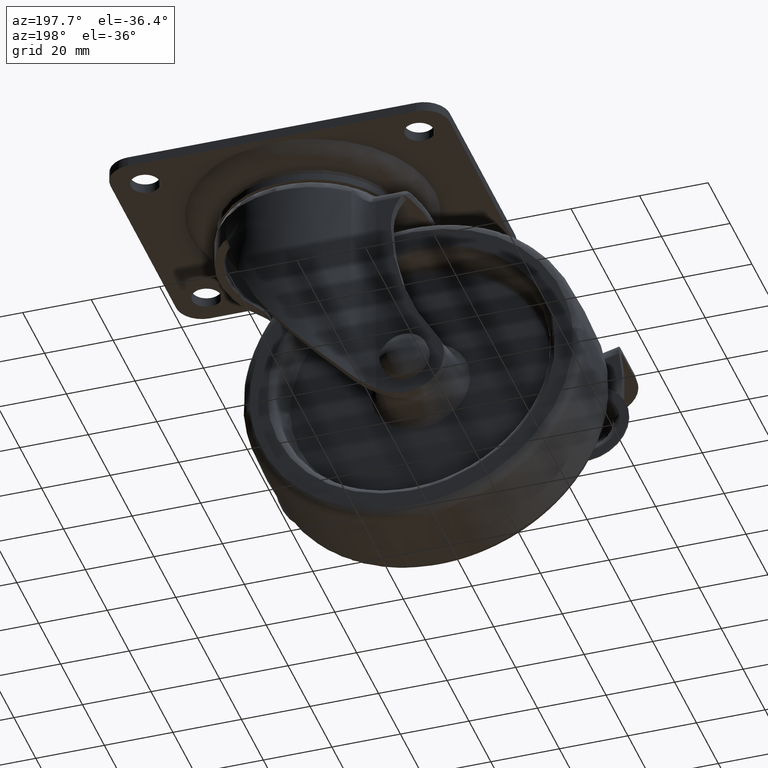
[diagram: clean part render]
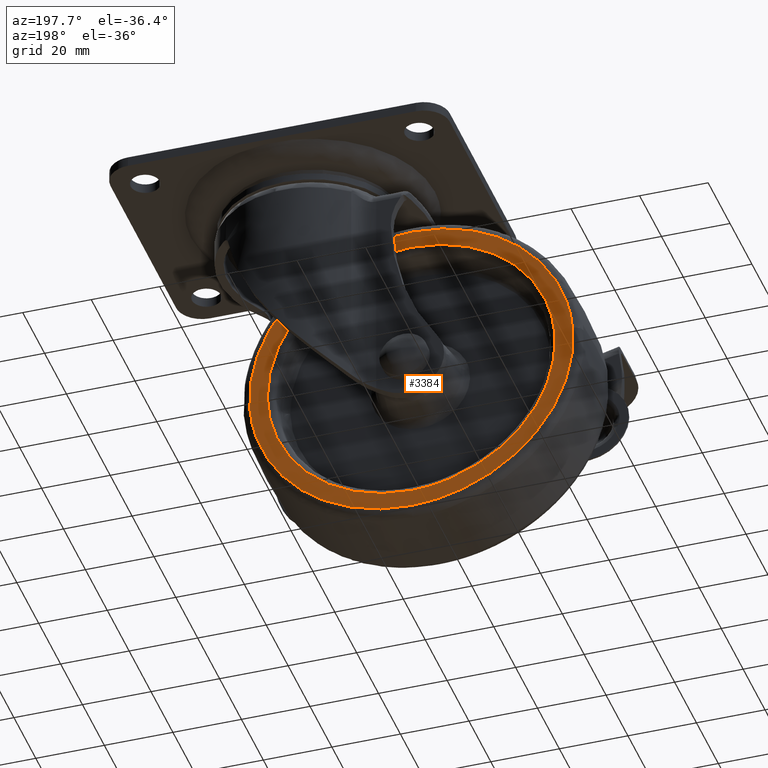
[diagram: same view with one face highlighted and labeled with its STEP entity id]
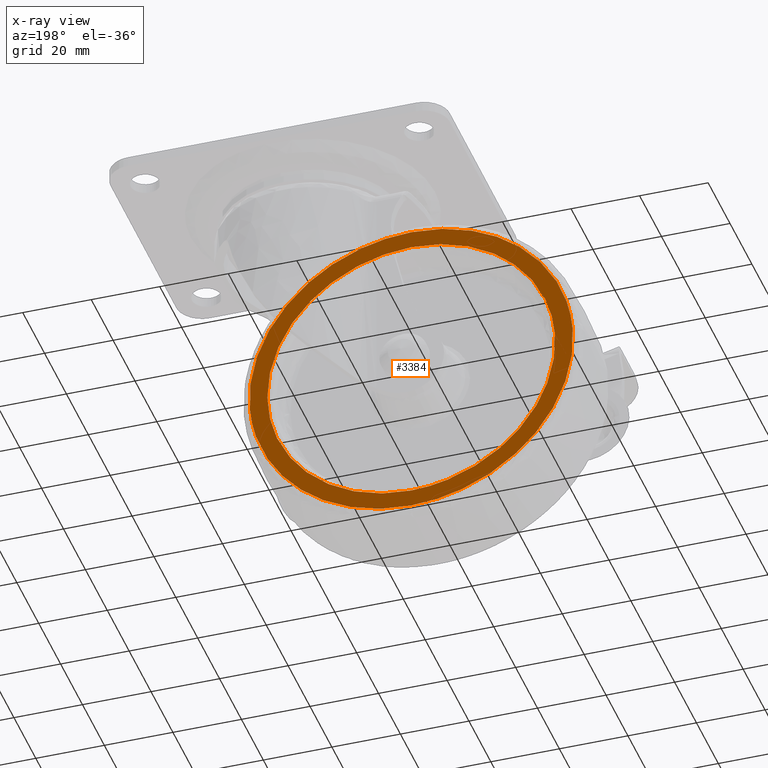
[diagram: x-ray of the same camera — body ghosted, the highlighted face saturated]
A machine part, auxiliary view. The second image highlights one B-rep face of the part: STEP entity #3384.
The next image is the same camera in x-ray: the body ghosted, the highlighted face saturated — about 0% of this face is hidden behind the body in this view.
In plain terms, the highlighted face is a freeform B-spline surface patch.
Its self-contained STEP definition (entity closure, byte-faithful):
#2135=CARTESIAN_POINT('',(14.059764728423991,13.500000000000000,-76.554724548812743));
#2136=VERTEX_POINT('',#2135);
#2148=CARTESIAN_POINT('',(-32.999587000000091,13.500000000000000,-25.806361046465810));
#2149=VERTEX_POINT('',#2148);
#2150=CARTESIAN_POINT('',(14.059764728423991,13.500000000000000,-76.554724548812743));
#2151=CARTESIAN_POINT('',(14.258121542513511,13.499999999999980,-73.932081458223720));
#2152=CARTESIAN_POINT('',(14.221909144406929,13.500000000000020,-69.567250422500194));
#2153=CARTESIAN_POINT('',(13.275797707015339,13.499999999999989,-63.152828957922189));
#2154=CARTESIAN_POINT('',(11.741919434512450,13.500000000000011,-57.580922317843438));
#2155=CARTESIAN_POINT('',(9.310999816512210,13.499999999999950,-51.786614084894261));
#2156=CARTESIAN_POINT('',(6.291004045112199,13.500000000000229,-46.621413843949490));
#2157=CARTESIAN_POINT('',(1.769754157088181,13.499999999999091,-40.767026899274619));
#2158=CARTESIAN_POINT('',(-3.668140199466652,13.500000000001590,-35.709774661118708));
#2159=CARTESIAN_POINT('',(-10.318090983843740,13.499999999997730,-31.426188444865652));
#2160=CARTESIAN_POINT('',(-16.225389022224281,13.500000000001091,-28.733940605530531));
#2161=CARTESIAN_POINT('',(-23.794520991870929,13.499999999999121,-26.453712515399879));
#2162=CARTESIAN_POINT('',(-29.357817931885180,13.500000000000460,-25.805563813266339));
#2163=CARTESIAN_POINT('',(-32.999587000000091,13.500000000000000,-25.806361046465810));
#2164=B_SPLINE_CURVE_WITH_KNOTS('',3,(#2150,#2151,#2152,#2153,#2154,#2155,#2156,#2157,#2158,#2159,#2160,#2161,#2162,#2163),.UNSPECIFIED.,.F.,.U.,(4,1,1,1,1,1,1,1,1,1,1,4),(0.000000207233910,7.890358007227022,13.049400240823861,19.422427866332590,25.188469667231988,31.865003169705759,37.327544819039467,47.342089144840280,54.018620361975330,60.998560187026442,66.764648738647338,77.689706007485441),.UNSPECIFIED.);
#2165=EDGE_CURVE('',#2136,#2149,#2164,.T.);
#2167=CARTESIAN_POINT('',(-80.058938728424181,13.500000000000000,-69.444863451187274));
#2168=VERTEX_POINT('',#2167);
#2169=CARTESIAN_POINT('',(-32.999587000000091,13.500000000000000,-25.806361046465810));
#2170=CARTESIAN_POINT('',(-35.021183344711240,13.500000000000011,-25.806321119140300));
#2171=CARTESIAN_POINT('',(-39.523872579903198,13.499999999999980,-26.096056054042950));
#2172=CARTESIAN_POINT('',(-46.920649950251089,13.499999999999959,-27.651881350356280));
#2173=CARTESIAN_POINT('',(-54.457332306325469,13.500000000000160,-30.685115220739629));
#2174=CARTESIAN_POINT('',(-60.469302220284668,13.499999999999780,-34.461042198009856));
#2175=CARTESIAN_POINT('',(-65.651621195414407,13.500000000000330,-38.731986973168837));
#2176=CARTESIAN_POINT('',(-69.800823952268374,13.499999999999920,-43.185108065202741));
#2177=CARTESIAN_POINT('',(-73.774893902424253,13.499999999999950,-48.943954903854092));
#2178=CARTESIAN_POINT('',(-76.553470017278826,13.500000000000030,-54.457987210071202));
#2179=CARTESIAN_POINT('',(-78.956499431459704,13.500000000000000,-61.418803137839461));
#2180=CARTESIAN_POINT('',(-79.824074158647278,13.500000000000000,-66.329347748408679));
#2181=CARTESIAN_POINT('',(-80.058938728424181,13.500000000000000,-69.444863451187274));
#2182=B_SPLINE_CURVE_WITH_KNOTS('',3,(#2169,#2170,#2171,#2172,#2173,#2174,#2175,#2176,#2177,#2178,#2179,#2180,#2181),.UNSPECIFIED.,.F.,.U.,(4,1,1,1,1,1,1,1,1,1,4),(0.000000163030933,6.064807567734704,13.508102662105470,22.605456015551379,30.324442449959239,34.735241671750288,42.729725600572330,48.518975105236187,55.686582308241363,61.200130198143519,70.573070464441187),.UNSPECIFIED.);
#2183=EDGE_CURVE('',#2149,#2168,#2182,.T.);
#2280=CARTESIAN_POINT('',(-32.999587000000091,13.500000000000000,-120.193226953534190));
#2281=VERTEX_POINT('',#2280);
#2282=CARTESIAN_POINT('',(-80.058938728424181,13.500000000000000,-69.444863451187274));
#2283=CARTESIAN_POINT('',(-80.219017908802101,13.500000000000011,-71.563140408816921));
#2284=CARTESIAN_POINT('',(-80.254134058551216,13.499999999999980,-76.024128311835241));
#2285=CARTESIAN_POINT('',(-79.416478070814719,13.500000000000030,-82.257063469305166));
#2286=CARTESIAN_POINT('',(-77.768513320749804,13.499999999999959,-88.319419137579246));
#2287=CARTESIAN_POINT('',(-75.567016217989519,13.500000000000069,-93.662857836871709));
#2288=CARTESIAN_POINT('',(-72.416190580783734,13.499999999999980,-99.214770825811627));
#2289=CARTESIAN_POINT('',(-68.664558626753660,13.499999999999940,-104.137083850723100));
#2290=CARTESIAN_POINT('',(-63.483750593159733,13.499999999999700,-109.275762572015910));
#2291=CARTESIAN_POINT('',(-57.642304932926173,13.500000000000680,-113.507962815282800));
#2292=CARTESIAN_POINT('',(-51.279009928196622,13.499999999999670,-116.658491769073810));
#2293=CARTESIAN_POINT('',(-45.139649051805023,13.500000000000300,-118.747407009909300));
#2294=CARTESIAN_POINT('',(-39.170236015402239,13.499999999999890,-119.933402803130600));
#2295=CARTESIAN_POINT('',(-34.921584542307819,13.499999999999860,-120.193266578516200));
#2296=CARTESIAN_POINT('',(-32.999587000000091,13.500000000000000,-120.193226953534190));
#2297=B_SPLINE_CURVE_WITH_KNOTS('',3,(#2282,#2283,#2284,#2285,#2286,#2287,#2288,#2289,#2290,#2291,#2292,#2293,#2294,#2295,#2296),.UNSPECIFIED.,.F.,.U.,(4,1,1,1,1,1,1,1,1,1,1,1,4),(0.000000207087837,6.372960702281091,13.352909375283829,18.815475612682189,25.188469667127681,30.651029204137920,37.934466527604613,43.700436994443002,52.501234652769099,59.481183202258762,64.943754487427000,71.923699199706903,77.689706007485981),.UNSPECIFIED.);
#2298=EDGE_CURVE('',#2168,#2281,#2297,.T.);
#2300=CARTESIAN_POINT('',(-32.999587000000091,13.500000000000000,-120.193226953534190));
#2301=CARTESIAN_POINT('',(-29.323836833929398,13.499999999999931,-120.194061451370000));
#2302=CARTESIAN_POINT('',(-23.535049246611671,13.500000000000091,-119.513321658422300));
#2303=CARTESIAN_POINT('',(-16.673971736561189,13.499999999999940,-117.384344025403490));
#2304=CARTESIAN_POINT('',(-11.026436885196430,13.500000000000130,-114.917715570499600));
#2305=CARTESIAN_POINT('',(-5.727840842321290,13.499999999999670,-111.739237298858100));
#2306=CARTESIAN_POINT('',(-0.764885524445902,13.500000000000361,-107.624381564159900));
#2307=CARTESIAN_POINT('',(3.984175435277482,13.499999999999760,-102.616728268237300));
#2308=CARTESIAN_POINT('',(8.250606008628893,13.500000000000060,-96.472794506348450));
#2309=CARTESIAN_POINT('',(11.581555647085549,13.500000000000011,-89.072226021629163));
#2310=CARTESIAN_POINT('',(13.368744461801230,13.500000000000000,-82.492477622988815));
#2311=CARTESIAN_POINT('',(13.921358584550401,13.500000000000000,-78.387315415503508));
#2312=CARTESIAN_POINT('',(14.059764728423991,13.500000000000000,-76.554724548812743));
#2313=B_SPLINE_CURVE_WITH_KNOTS('',3,(#2300,#2301,#2302,#2303,#2304,#2305,#2306,#2307,#2308,#2309,#2310,#2311,#2312),.UNSPECIFIED.,.F.,.U.,(4,1,1,1,1,1,1,1,1,1,4),(0.000000163057322,11.027006606428120,17.367592027452201,21.502758859966431,29.497354263873461,35.837830635076870,40.799977587120068,50.173023471672302,58.167683468746873,65.059628192796836,70.573070464441187),.UNSPECIFIED.);
#2314=EDGE_CURVE('',#2281,#2136,#2313,.T.);
#2349=CARTESIAN_POINT('',(-74.897345295123074,13.500000000000000,-70.070997434045552));
#2350=VERTEX_POINT('',#2349);
#2351=CARTESIAN_POINT('',(-32.999587000000091,13.500000000000000,-114.999793999999990));
#2352=VERTEX_POINT('',#2351);
#2353=CARTESIAN_POINT('',(-74.897345295123074,13.500000000000000,-70.070997434045552));
#2354=CARTESIAN_POINT('',(-75.104354152256704,13.500000000000099,-73.024549806171933));
#2355=CARTESIAN_POINT('',(-74.951080568017900,13.499999999999901,-77.262122839198895));
#2356=CARTESIAN_POINT('',(-73.768407526677251,13.500000000000080,-83.528028187215909));
#2357=CARTESIAN_POINT('',(-72.293897906906054,13.500000000000060,-88.158087977017942));
#2358=CARTESIAN_POINT('',(-69.749259280107225,13.499999999999890,-93.612940863193302));
#2359=CARTESIAN_POINT('',(-66.129408520849182,13.500000000000060,-99.208232543638161));
#2360=CARTESIAN_POINT('',(-61.221672386259279,13.500000000000110,-104.370522681630700));
#2361=CARTESIAN_POINT('',(-55.756466754361853,13.499999999999689,-108.473833427442300));
#2362=CARTESIAN_POINT('',(-50.070312354673653,13.500000000000520,-111.579371710016900));
#2363=CARTESIAN_POINT('',(-42.419725784026113,13.499999999999600,-114.255297989232100));
#2364=CARTESIAN_POINT('',(-36.498734228141920,13.500000000000160,-115.000769983359210));
#2365=CARTESIAN_POINT('',(-32.999587000000091,13.500000000000000,-114.999793999999990));
#2366=B_SPLINE_CURVE_WITH_KNOTS('',3,(#2353,#2354,#2355,#2356,#2357,#2358,#2359,#2360,#2361,#2362,#2363,#2364,#2365),.UNSPECIFIED.,.F.,.U.,(4,1,1,1,1,1,1,1,1,1,4),(0.000000202854750,8.882228331375259,12.650461922693029,19.110306298757958,23.416858994779972,30.684225673491099,39.028074571988803,44.680392190055002,51.140238656573729,58.407571005277219,68.904739064666146),.UNSPECIFIED.);
#2367=EDGE_CURVE('',#2350,#2352,#2366,.T.);
#2383=CARTESIAN_POINT('',(8.997096846427702,13.500000000000000,-73.527567675378208));
#2384=VERTEX_POINT('',#2383);
#2395=CARTESIAN_POINT('',(-32.999587000000091,13.500000000000000,-114.999793999999990));
#2396=CARTESIAN_POINT('',(-31.124853931197389,13.500000000000000,-114.999834223282600));
#2397=CARTESIAN_POINT('',(-27.034498573193190,13.499999999999970,-114.725595936107690));
#2398=CARTESIAN_POINT('',(-21.269554826141871,13.500000000000099,-113.478473761653210));
#2399=CARTESIAN_POINT('',(-15.106861380694109,13.499999999999950,-111.186492045632210));
#2400=CARTESIAN_POINT('',(-9.659040192379688,13.500000000000041,-108.129974058835400));
#2401=CARTESIAN_POINT('',(-4.837517370669417,13.500000000000030,-104.313323015047000));
#2402=CARTESIAN_POINT('',(-1.259106826891613,13.500000000000020,-100.648124156962200));
#2403=CARTESIAN_POINT('',(2.132381343048194,13.500000000000080,-96.258273575197165));
#2404=CARTESIAN_POINT('',(5.110701864342161,13.499999999999741,-91.066593078671701));
#2405=CARTESIAN_POINT('',(7.232302791593540,13.500000000000171,-85.473018971693932));
#2406=CARTESIAN_POINT('',(8.604099397888870,13.499999999999750,-79.658575842220102));
#2407=CARTESIAN_POINT('',(8.968344633178463,13.500000000000190,-75.828210389052515));
#2408=CARTESIAN_POINT('',(8.997096846427702,13.500000000000000,-73.527567675378208));
#2409=B_SPLINE_CURVE_WITH_KNOTS('',3,(#2395,#2396,#2397,#2398,#2399,#2400,#2401,#2402,#2403,#2404,#2405,#2406,#2407,#2408),.UNSPECIFIED.,.F.,.U.,(4,1,1,1,1,1,1,1,1,1,1,4),(0.000000183494848,5.624214829409652,12.271055306297340,17.639681294310229,25.309168097090069,30.933349500708719,36.046209693781421,40.647892102633222,47.550426775646379,53.941633472225547,58.543313776579637,65.445759183437190),.UNSPECIFIED.);
#2410=EDGE_CURVE('',#2352,#2384,#2409,.T.);
#2438=CARTESIAN_POINT('',(-32.999587000000091,13.500000000000000,-30.999794000000009));
#2439=VERTEX_POINT('',#2438);
#2440=CARTESIAN_POINT('',(-32.999587000000091,13.500000000000000,-30.999794000000009));
#2441=CARTESIAN_POINT('',(-35.544249765750962,13.500000000000020,-30.999584097205670));
#2442=CARTESIAN_POINT('',(-40.797725200118172,13.499999999999959,-31.478546649908111));
#2443=CARTESIAN_POINT('',(-48.251336500882452,13.500000000000121,-33.609689128752137));
#2444=CARTESIAN_POINT('',(-54.812506812553167,13.499999999999879,-36.886812820594272));
#2445=CARTESIAN_POINT('',(-60.077598351357253,13.500000000000041,-40.704739283279913));
#2446=CARTESIAN_POINT('',(-64.739129388152492,13.500000000000000,-45.234044828846102));
#2447=CARTESIAN_POINT('',(-68.847883407060039,13.499999999999989,-50.701868521616312));
#2448=CARTESIAN_POINT('',(-72.010542076451301,13.500000000000011,-56.951623592372933));
#2449=CARTESIAN_POINT('',(-74.076521116927552,13.499999999999989,-63.463218066016232));
#2450=CARTESIAN_POINT('',(-74.737248197418268,13.500000000000011,-67.778154937273385));
#2451=CARTESIAN_POINT('',(-74.897345295123074,13.500000000000000,-70.070997434045552));
#2452=B_SPLINE_CURVE_WITH_KNOTS('',3,(#2440,#2441,#2442,#2443,#2444,#2445,#2446,#2447,#2448,#2449,#2450,#2451),.UNSPECIFIED.,.F.,.U.,(4,1,1,1,1,1,1,1,1,4),(0.000000167975330,7.633976660126017,15.760590501591540,23.148413374030081,29.551199606546891,35.215036716571213,42.602842757808901,49.990636366496993,56.147110774426608,63.042360593473802),.UNSPECIFIED.);
#2453=EDGE_CURVE('',#2439,#2350,#2452,.T.);
#2455=CARTESIAN_POINT('',(8.997096846427702,13.500000000000000,-73.527567675378208));
#2456=CARTESIAN_POINT('',(9.023333433175006,13.499999999999980,-71.449587148818253));
#2457=CARTESIAN_POINT('',(8.782379173993997,13.499999999999989,-67.549743062079244));
#2458=CARTESIAN_POINT('',(7.640072498320434,13.500000000000041,-61.937800237316630));
#2459=CARTESIAN_POINT('',(5.667829714321302,13.499999999999959,-56.192748257767683));
#2460=CARTESIAN_POINT('',(2.564223697194093,13.499999999999989,-50.263376897727447));
#2461=CARTESIAN_POINT('',(-2.150367235273627,13.500000000000069,-44.130626946687613));
#2462=CARTESIAN_POINT('',(-7.484498503924442,13.499999999999860,-39.388413826094762));
#2463=CARTESIAN_POINT('',(-13.808187033509830,13.500000000000330,-35.426034935214759));
#2464=CARTESIAN_POINT('',(-20.070475506215420,13.499999999999590,-32.808921956376899));
#2465=CARTESIAN_POINT('',(-26.851728319773311,13.500000000000661,-31.295979364255569));
#2466=CARTESIAN_POINT('',(-31.008021701214648,13.499999999999259,-30.999701393477640));
#2467=CARTESIAN_POINT('',(-32.999587000000091,13.500000000000000,-30.999794000000009));
#2468=B_SPLINE_CURVE_WITH_KNOTS('',3,(#2455,#2456,#2457,#2458,#2459,#2460,#2461,#2462,#2463,#2464,#2465,#2466,#2467),.UNSPECIFIED.,.F.,.U.,(4,1,1,1,1,1,1,1,1,1,4),(0.000000192103826,6.234423073987976,11.689675682984349,17.144879391874820,24.418519710974760,31.692153967885570,40.264414274008018,45.719658038041139,54.032350985256123,60.526643220437421,66.501339285621498),.UNSPECIFIED.);
#2469=EDGE_CURVE('',#2384,#2439,#2468,.T.);
#3367=CARTESIAN_POINT('',(-84.896714912961997,13.500000000000000,-124.907854266797700));
#3368=CARTESIAN_POINT('',(-84.896714912961997,13.500000000000000,-21.091734577086680));
#3369=CARTESIAN_POINT('',(18.897563697294871,13.500000000000000,-124.907854266797700));
#3370=CARTESIAN_POINT('',(18.897563697294871,13.500000000000000,-21.091734577086680));
#3371=B_SPLINE_SURFACE_WITH_KNOTS('',1,1,((#3367,#3369),(#3368,#3370)),.UNSPECIFIED.,.F.,.F.,.U.,(2,2),(2,2),(0.0,103.816119689711000),(0.0,103.794278610256900),.UNSPECIFIED.);
#3372=ORIENTED_EDGE('',*,*,#2298,.F.);
#3373=ORIENTED_EDGE('',*,*,#2183,.F.);
#3374=ORIENTED_EDGE('',*,*,#2165,.F.);
#3375=ORIENTED_EDGE('',*,*,#2314,.F.);
#3376=EDGE_LOOP('',(#3372,#3373,#3374,#3375));
#3377=FACE_OUTER_BOUND('',#3376,.T.);
#3378=ORIENTED_EDGE('',*,*,#2410,.T.);
#3379=ORIENTED_EDGE('',*,*,#2469,.T.);
#3380=ORIENTED_EDGE('',*,*,#2453,.T.);
#3381=ORIENTED_EDGE('',*,*,#2367,.T.);
#3382=EDGE_LOOP('',(#3378,#3379,#3380,#3381));
#3383=FACE_BOUND('',#3382,.T.);
#3384=ADVANCED_FACE('',(#3377,#3383),#3371,.T.);